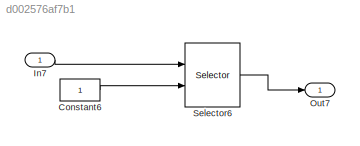
MODEL slx_d002576af7b1
KIND model
CONFIG AbsTol = auto
CONFIG EnableMultiTasking = on
CONFIG FixedStep = 0.1
CONFIG MaxStep = 1
CONFIG MinStep = auto
CONFIG RelTol = 1e-3
CONFIG SampleTimeConstraint = Unconstrained
CONFIG Solver = FixedStepAuto
CONFIG SolverName = FixedStepAuto
CONFIG StartTime = 0.0
CONFIG StopTime = 0
BLOCK [Constant] Constant6
BLOCK [Inport] In7
  IconDisplay = Port number
  PortDimensions = [2 3]
BLOCK [Outport] Out7
  IconDisplay = Port number
BLOCK [Selector] Selector6
  IndexMode = Zero-based
  IndexOptions = Index vector (port),Select all
  Indices = [1 0],1
  InputPortWidth = 3
  NumberOfDimensions = 2
  OutputSizes = 1,2
  Ports = [2, 1]
LINE Constant6:1 -> Selector6:2
LINE In7:1 -> Selector6:1
LINE Selector6:1 -> Out7:1
